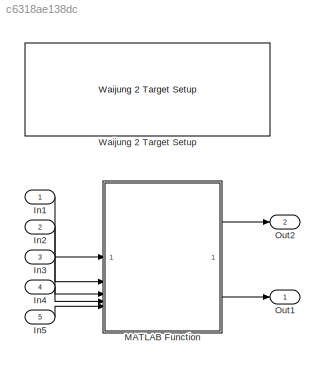
MODEL slx_c6318ae138dc
KIND model
CONFIG AbsTol = auto
CONFIG EnableMultiTasking = on
CONFIG FixedStep = SIMULPARAM.Ts
CONFIG MaxStep = auto
CONFIG MinStep = auto
CONFIG RelTol = 1e-3
CONFIG SampleTimeConstraint = Unconstrained
CONFIG SolverName = FixedStepDiscrete
CONFIG StartTime = 0.0
CONFIG StopFcn = ShowResults;
CONFIG StopTime = SIMULPARAM.T_end
BLOCK [Inport] In1
BLOCK [Inport] In2
  Port = 2
BLOCK [Inport] In3
  Port = 3
BLOCK [Inport] In4
  Port = 4
BLOCK [Inport] In5
  Port = 5
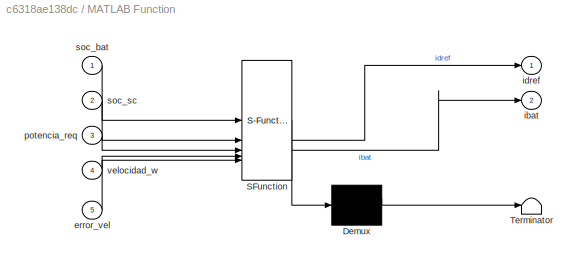
BLOCK [SubSystem] MATLAB Function
  ErrorFcn = Stateflow.Translate.translate
  PermitHierarchicalResolution = ExplicitOnly
  SFBlockType = MATLAB Function
  SystemSampleTime = 0.001
  TreatAsAtomicUnit = on
BLOCK [Demux] MATLAB Function/ Demux 
  Outputs = 1
BLOCK [S-Function] MATLAB Function/ SFunction 
  EnableBusSupport = on
  FunctionName = sf_sfun
  PortCounts = [5 3]
  SFcnIsStateOwnerBlock = off
  SFunctionDeploymentMode = off
  Tag = Stateflow S-Function 2
BLOCK [Terminator] MATLAB Function/ Terminator 
BLOCK [Inport] MATLAB Function/error_vel
  Port = 5
BLOCK [Outport] MATLAB Function/ibat
  Port = 2
BLOCK [Outport] MATLAB Function/idref
BLOCK [Inport] MATLAB Function/potencia_req
  Port = 3
BLOCK [Inport] MATLAB Function/soc_bat
BLOCK [Inport] MATLAB Function/soc_sc
  Port = 2
BLOCK [Inport] MATLAB Function/velocidad_w
  Port = 4
BLOCK [Outport] Out1
BLOCK [Outport] Out2
  Port = 2
BLOCK [Reference] Waijung 2 Target Setup  REF=esp32_device_config_lib/Waijung 2 Target Setup
  SourceBlock = esp32_device_config_lib/Waijung 2 Target Setup
  SourceProductName = Waijung 2 Blockset
  SourceType = esp32_target_setup
LINE In1:1 -> MATLAB Function:1
LINE In2:1 -> MATLAB Function:2
LINE In3:1 -> MATLAB Function:3
LINE In4:1 -> MATLAB Function:4
LINE In5:1 -> MATLAB Function:5
LINE MATLAB Function:1 -> Out2:1
LINE MATLAB Function:2 -> Out1:1
CHART MATLAB Function states=1 transitions=1
  STATE_LABEL 'eML_blk_kernel()'
  STATE_LABEL 'SCRIPT:\nfunction [idref, ibat] = fcn(soc_bat, soc_sc, potencia_req, velocidad_w, error_vel)\n%#codegen\n\n%% --- Limitación de Entradas ---\nsoc_bat      = max(0, min(100, soc_bat));\nsoc_sc       = max(0, min(100, soc_sc));\npotencia_req = max(-3.188, min(6.01308, potencia_req));\nvelocidad_w  = max(0, min(700, velocidad_w));\nerror_vel    = max(-5.25, min(5.25, error_vel));\n\n%% --- Funciones auxiliares ...<+3585ch>'
CHART  states=0 transitions=0
